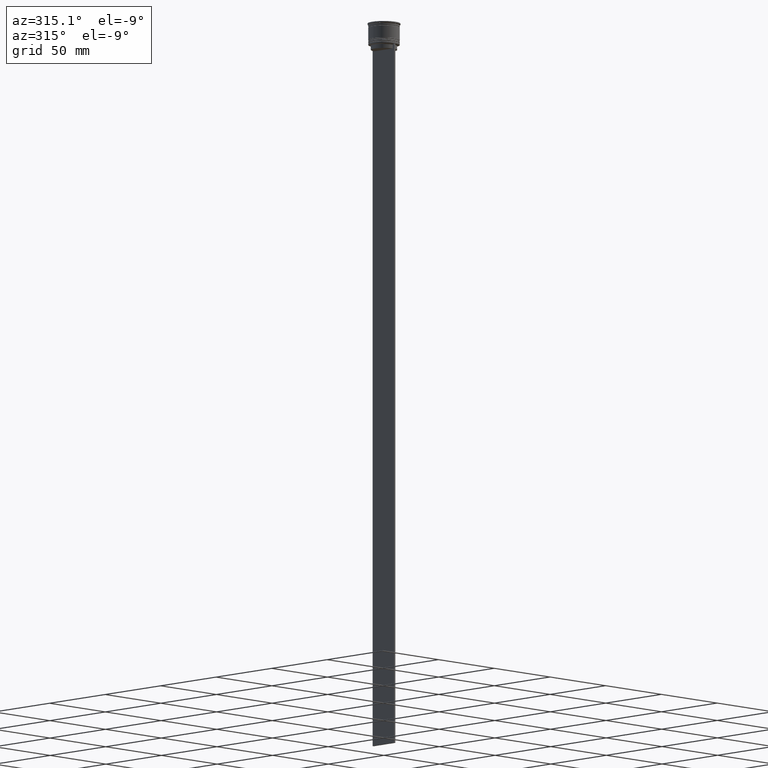
[diagram: clean part render]
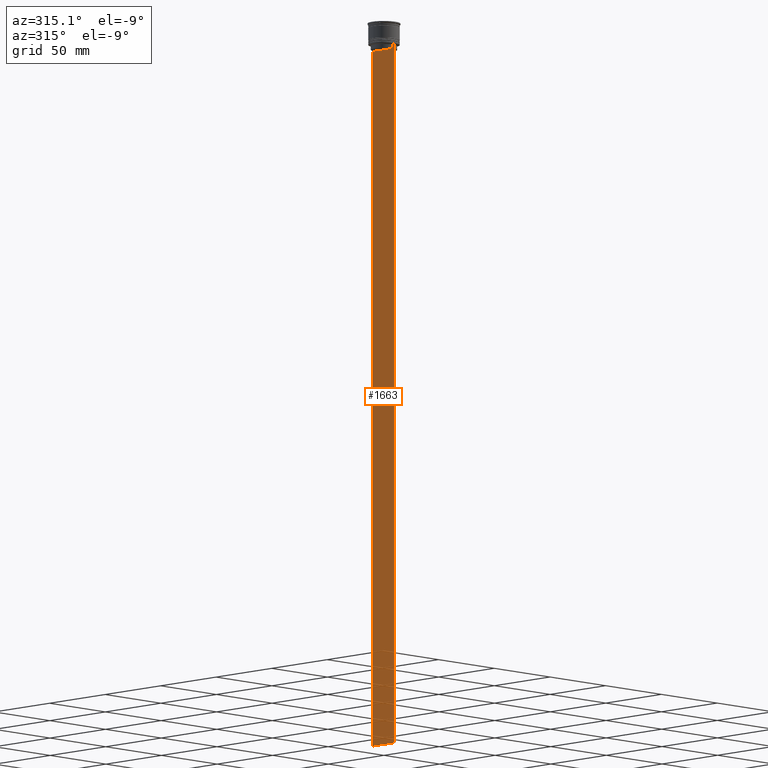
[diagram: same view with one face highlighted and labeled with its STEP entity id]
A machine part, auxiliary view. The second image highlights one B-rep face of the part: STEP entity #1663.
In plain terms, the highlighted planar face has unit normal (-1, 0, 0).
Its self-contained STEP definition (entity closure, byte-faithful):
#20 = DIRECTION ( 'NONE',  ( 0.000000000000000000, -1.000000000000000000, 0.000000000000000000 ) ) ;
#37 = AXIS2_PLACEMENT_3D ( 'NONE', #918, #1311, #1093 ) ;
#38 = LINE ( 'NONE', #2450, #1763 ) ;
#64 = CARTESIAN_POINT ( 'NONE',  ( -0.5000000000000001110, 8.385105843100616241, -17.00000000000000000 ) ) ;
#94 = EDGE_CURVE ( 'NONE', #1589, #352, #1701, .T. ) ;
#100 = ORIENTED_EDGE ( 'NONE', *, *, #94, .F. ) ;
#165 = LINE ( 'NONE', #2093, #412 ) ;
#168 = EDGE_LOOP ( 'NONE', ( #708, #100, #1640, #784, #963, #2556, #2090, #1267, #1425, #1281 ) ) ;
#185 = DIRECTION ( 'NONE',  ( 0.000000000000000000, 0.000000000000000000, -1.000000000000000000 ) ) ;
#197 = LINE ( 'NONE', #2562, #1567 ) ;
#226 = CARTESIAN_POINT ( 'NONE',  ( -0.5000000000000001110, 8.400000000000003908, -17.00000000000000000 ) ) ;
#256 = DIRECTION ( 'NONE',  ( -0.000000000000000000, -0.000000000000000000, 1.000000000000000000 ) ) ;
#307 = EDGE_CURVE ( 'NONE', #2292, #2182, #964, .T. ) ;
#339 = CARTESIAN_POINT ( 'NONE',  ( -0.5000000000000001110, 8.719005771582351016, -14.16667453442324742 ) ) ;
#340 = EDGE_CURVE ( 'NONE', #1556, #1307, #38, .T. ) ;
#352 = VERTEX_POINT ( 'NONE', #870 ) ;
#372 = LINE ( 'NONE', #1184, #2530 ) ;
#412 = VECTOR ( 'NONE', #1115, 1000.000000000000000 ) ;
#425 = CARTESIAN_POINT ( 'NONE',  ( -0.5000000000000001110, -9.749999999999998224, -14.00000000000000178 ) ) ;
#467 = EDGE_CURVE ( 'NONE', #2182, #1705, #1622, .T. ) ;
#548 = DIRECTION ( 'NONE',  ( 0.000000000000000000, -1.000000000000000000, 0.000000000000000000 ) ) ;
#695 = CARTESIAN_POINT ( 'NONE',  ( -0.5000000000000001110, 9.750000000000001776, -464.0000000000000000 ) ) ;
#708 = ORIENTED_EDGE ( 'NONE', *, *, #1982, .F. ) ;
#775 = DIRECTION ( 'NONE',  ( 0.000000000000000000, 1.000000000000000000, 0.000000000000000000 ) ) ;
#784 = ORIENTED_EDGE ( 'NONE', *, *, #1804, .F. ) ;
#794 = LINE ( 'NONE', #226, #1536 ) ;
#870 = CARTESIAN_POINT ( 'NONE',  ( -0.5000000000000001110, 8.885943956609230199, -14.00000000000000178 ) ) ;
#890 = CARTESIAN_POINT ( 'NONE',  ( -0.5000000000000001110, -9.749999999999998224, -464.0000000000000000 ) ) ;
#918 = CARTESIAN_POINT ( 'NONE',  ( -0.5000000000000001110, -9.749999999999998224, 5.525624189766635830 ) ) ;
#929 = FACE_OUTER_BOUND ( 'NONE', #168, .T. ) ;
#941 = PLANE ( 'NONE',  #37 ) ;
#962 = CARTESIAN_POINT ( 'NONE',  ( -0.5000000000000001110, -8.885943956609230199, -14.00000000000000178 ) ) ;
#963 = ORIENTED_EDGE ( 'NONE', *, *, #467, .F. ) ;
#964 = LINE ( 'NONE', #425, #1520 ) ;
#1091 = CARTESIAN_POINT ( 'NONE',  ( -0.5000000000000001110, 8.385105843100616241, -14.50000000000000000 ) ) ;
#1093 = DIRECTION ( 'NONE',  ( 0.000000000000000000, 0.000000000000000000, 1.000000000000000000 ) ) ;
#1104 = VECTOR ( 'NONE', #548, 1000.000000000000000 ) ;
#1115 = DIRECTION ( 'NONE',  ( 0.000000000000000000, 0.000000000000000000, -1.000000000000000000 ) ) ;
#1184 = CARTESIAN_POINT ( 'NONE',  ( -0.5000000000000001110, 9.750000000000001776, 5.525624189766635830 ) ) ;
#1211 = VERTEX_POINT ( 'NONE', #2313 ) ;
#1230 = DIRECTION ( 'NONE',  ( 0.000000000000000000, 0.000000000000000000, -1.000000000000000000 ) ) ;
#1242 = B_SPLINE_CURVE_WITH_KNOTS ( 'NONE', 3,
 ( #1344, #1544, #1746, #962 ),
 .UNSPECIFIED., .F., .F.,
 ( 4, 4 ),
 ( 0.03898465126933130243, 0.03969388910599658260 ),
 .UNSPECIFIED. ) ;
#1267 = ORIENTED_EDGE ( 'NONE', *, *, #340, .F. ) ;
#1281 = ORIENTED_EDGE ( 'NONE', *, *, #2395, .F. ) ;
#1306 = EDGE_CURVE ( 'NONE', #1589, #2046, #372, .T. ) ;
#1307 = VERTEX_POINT ( 'NONE', #2356 ) ;
#1311 = DIRECTION ( 'NONE',  ( -1.000000000000000000, 0.000000000000000000, 0.000000000000000000 ) ) ;
#1344 = CARTESIAN_POINT ( 'NONE',  ( -0.5000000000000001110, -8.385105843100616241, -14.50000000000000000 ) ) ;
#1425 = ORIENTED_EDGE ( 'NONE', *, *, #2565, .F. ) ;
#1441 = VERTEX_POINT ( 'NONE', #64 ) ;
#1512 = CARTESIAN_POINT ( 'NONE',  ( -0.5000000000000001110, 9.749999999999998224, -14.00000000000000178 ) ) ;
#1520 = VECTOR ( 'NONE', #20, 1000.000000000000000 ) ;
#1536 = VECTOR ( 'NONE', #1591, 1000.000000000000000 ) ;
#1544 = CARTESIAN_POINT ( 'NONE',  ( -0.5000000000000001110, -8.552060194457773434, -14.33334167772667023 ) ) ;
#1556 = VERTEX_POINT ( 'NONE', #2462 ) ;
#1567 = VECTOR ( 'NONE', #775, 1000.000000000000000 ) ;
#1589 = VERTEX_POINT ( 'NONE', #1512 ) ;
#1591 = DIRECTION ( 'NONE',  ( 0.000000000000000000, -1.000000000000000000, 0.000000000000000000 ) ) ;
#1622 = LINE ( 'NONE', #2022, #1686 ) ;
#1640 = ORIENTED_EDGE ( 'NONE', *, *, #1306, .T. ) ;
#1663 = ADVANCED_FACE ( 'NONE', ( #929 ), #941, .T. ) ;
#1686 = VECTOR ( 'NONE', #1230, 1000.000000000000000 ) ;
#1701 = LINE ( 'NONE', #2290, #1104 ) ;
#1704 = CARTESIAN_POINT ( 'NONE',  ( -0.5000000000000001110, 8.885943956609230199, -14.00000000000000178 ) ) ;
#1705 = VERTEX_POINT ( 'NONE', #890 ) ;
#1746 = CARTESIAN_POINT ( 'NONE',  ( -0.5000000000000001110, -8.719005764482790966, -14.16667454151159689 ) ) ;
#1763 = VECTOR ( 'NONE', #256, 1000.000000000000000 ) ;
#1804 = EDGE_CURVE ( 'NONE', #1705, #2046, #197, .T. ) ;
#1982 = EDGE_CURVE ( 'NONE', #352, #1211, #2339, .T. ) ;
#2010 = CARTESIAN_POINT ( 'NONE',  ( -0.5000000000000001110, -8.885943956609230199, -14.00000000000000178 ) ) ;
#2022 = CARTESIAN_POINT ( 'NONE',  ( -0.5000000000000001110, -9.749999999999998224, 5.525624189766635830 ) ) ;
#2046 = VERTEX_POINT ( 'NONE', #695 ) ;
#2090 = ORIENTED_EDGE ( 'NONE', *, *, #2351, .F. ) ;
#2093 = CARTESIAN_POINT ( 'NONE',  ( -0.5000000000000001110, 8.385105843100616241, 0.000000000000000000 ) ) ;
#2160 = CARTESIAN_POINT ( 'NONE',  ( -0.5000000000000001110, -9.749999999999998224, -14.00000000000000178 ) ) ;
#2182 = VERTEX_POINT ( 'NONE', #2160 ) ;
#2290 = CARTESIAN_POINT ( 'NONE',  ( -0.5000000000000001110, -9.749999999999998224, -14.00000000000000178 ) ) ;
#2292 = VERTEX_POINT ( 'NONE', #2010 ) ;
#2313 = CARTESIAN_POINT ( 'NONE',  ( -0.5000000000000001110, 8.385105843100616241, -14.50000000000000000 ) ) ;
#2339 = B_SPLINE_CURVE_WITH_KNOTS ( 'NONE', 3,
 ( #1704, #339, #2468, #1091 ),
 .UNSPECIFIED., .F., .F.,
 ( 4, 4 ),
 ( 0.01511546479386908018, 0.01582316445439079997 ),
 .UNSPECIFIED. ) ;
#2351 = EDGE_CURVE ( 'NONE', #1307, #2292, #1242, .T. ) ;
#2356 = CARTESIAN_POINT ( 'NONE',  ( -0.5000000000000001110, -8.385105843100616241, -14.50000000000000000 ) ) ;
#2395 = EDGE_CURVE ( 'NONE', #1211, #1441, #165, .T. ) ;
#2450 = CARTESIAN_POINT ( 'NONE',  ( -0.5000000000000001110, -8.385105843100616241, 0.000000000000000000 ) ) ;
#2462 = CARTESIAN_POINT ( 'NONE',  ( -0.5000000000000001110, -8.385105843100616241, -17.00000000000000000 ) ) ;
#2468 = CARTESIAN_POINT ( 'NONE',  ( -0.5000000000000001110, 8.552060201981381837, -14.33334167021640226 ) ) ;
#2530 = VECTOR ( 'NONE', #185, 1000.000000000000000 ) ;
#2556 = ORIENTED_EDGE ( 'NONE', *, *, #307, .F. ) ;
#2562 = CARTESIAN_POINT ( 'NONE',  ( -0.5000000000000001110, -9.749999999999998224, -464.0000000000000000 ) ) ;
#2565 = EDGE_CURVE ( 'NONE', #1441, #1556, #794, .T. ) ;